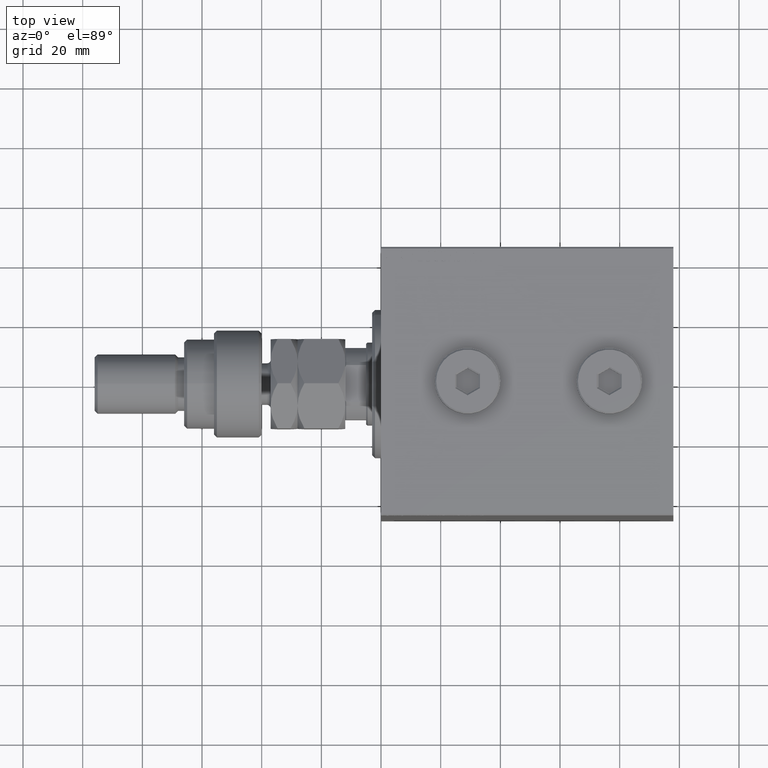
[diagram: clean part render]
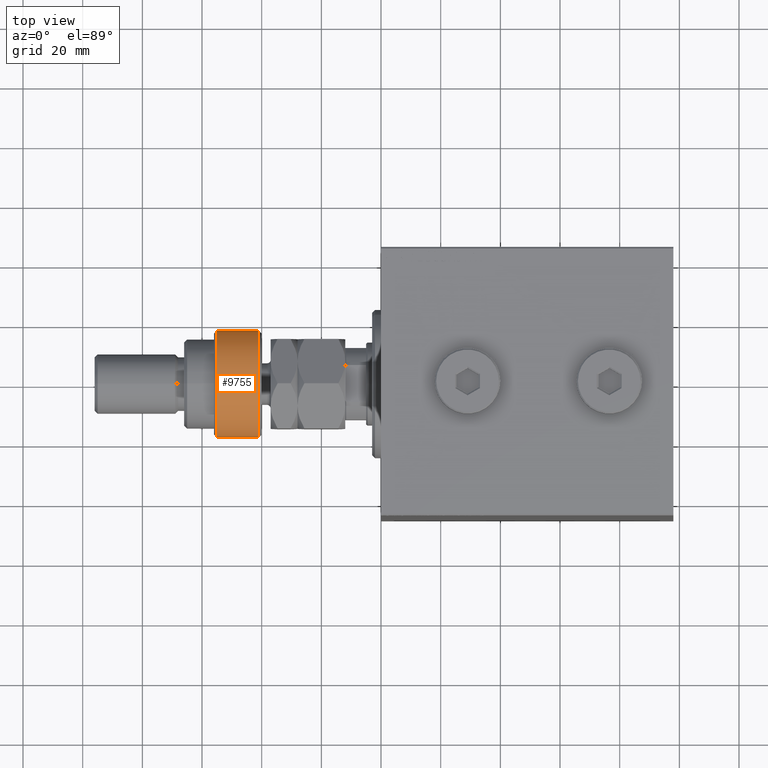
[diagram: same view with one face highlighted and labeled with its STEP entity id]
A machine part, top view. The second image highlights one B-rep face of the part: STEP entity #9755.
In plain terms, the highlighted cylindrical surface (partial cylindrical patch) has radius 18 mm, axis along (1, -0, -0).
Its self-contained STEP definition (entity closure, byte-faithful):
#1472 = CARTESIAN_POINT ( 'NONE',  ( -16.36306817195357155, -7.500000000000000000, 1.000000000000011324 ) ) ;
#2049 = ORIENTED_EDGE ( 'NONE', *, *, #41254, .T. ) ;
#6211 = VERTEX_POINT ( 'NONE', #1472 ) ;
#6508 = DIRECTION ( 'NONE',  ( 1.000000000000000000, 0.000000000000000000, 0.000000000000000000 ) ) ;
#6789 = CARTESIAN_POINT ( 'NONE',  ( -16.36306817195357155, -7.500000000000000000, 17.50000000000000000 ) ) ;
#7925 = FACE_OUTER_BOUND ( 'NONE', #9473, .T. ) ;
#8892 = AXIS2_PLACEMENT_3D ( 'NONE', #12552, #27346, #42143 ) ;
#9473 = EDGE_LOOP ( 'NONE', ( #24713, #45806, #2049, #31678, #44112 ) ) ;
#9755 = ADVANCED_FACE ( 'NONE', ( #7925 ), #29993, .T. ) ;
#9901 = CARTESIAN_POINT ( 'NONE',  ( -16.36306817195357155, -7.500000000000000000, 14.99999999999999645 ) ) ;
#11461 = DIRECTION ( 'NONE',  ( 0.000000000000000000, 0.000000000000000000, -1.000000000000000000 ) ) ;
#11845 = VERTEX_POINT ( 'NONE', #41099 ) ;
#11938 = DIRECTION ( 'NONE',  ( 1.000000000000000000, 0.000000000000000000, 0.000000000000000000 ) ) ;
#12552 = CARTESIAN_POINT ( 'NONE',  ( 0.000000000000000000, 0.000000000000000000, 1.000000000000011324 ) ) ;
#13587 = CARTESIAN_POINT ( 'NONE',  ( -16.36306817195357155, 7.500000000000000000, 14.99999999999999645 ) ) ;
#13646 = VERTEX_POINT ( 'NONE', #22724 ) ;
#15002 = VECTOR ( 'NONE', #36392, 1000.000000000000000 ) ;
#15392 = EDGE_CURVE ( 'NONE', #23272, #31896, #31659, .T. ) ;
#21267 = CIRCLE ( 'NONE', #8892, 18.00000000000000000 ) ;
#22222 = DIRECTION ( 'NONE',  ( -1.000000000000000000, 0.000000000000000000, 0.000000000000000000 ) ) ;
#22724 = CARTESIAN_POINT ( 'NONE',  ( -16.36306817195357155, 7.500000000000000000, 1.000000000000011324 ) ) ;
#23272 = VERTEX_POINT ( 'NONE', #13587 ) ;
#24713 = ORIENTED_EDGE ( 'NONE', *, *, #25633, .F. ) ;
#25625 = CARTESIAN_POINT ( 'NONE',  ( 0.000000000000000000, 0.000000000000000000, 16.00000000000000000 ) ) ;
#25633 = EDGE_CURVE ( 'NONE', #23272, #13646, #28228, .T. ) ;
#25771 = CARTESIAN_POINT ( 'NONE',  ( 0.000000000000000000, 0.000000000000000000, 14.99999999999999645 ) ) ;
#26211 = AXIS2_PLACEMENT_3D ( 'NONE', #25771, #11461, #11938 ) ;
#27346 = DIRECTION ( 'NONE',  ( -0.000000000000000000, -0.000000000000000000, 1.000000000000000000 ) ) ;
#28228 = LINE ( 'NONE', #46897, #46459 ) ;
#29993 = CYLINDRICAL_SURFACE ( 'NONE', #40905, 18.00000000000000000 ) ;
#31659 = CIRCLE ( 'NONE', #26211, 18.00000000000000000 ) ;
#31678 = ORIENTED_EDGE ( 'NONE', *, *, #42576, .T. ) ;
#31896 = VERTEX_POINT ( 'NONE', #9901 ) ;
#32181 = CIRCLE ( 'NONE', #39894, 18.00000000000000000 ) ;
#36392 = DIRECTION ( 'NONE',  ( -0.000000000000000000, -0.000000000000000000, -1.000000000000000000 ) ) ;
#36582 = CARTESIAN_POINT ( 'NONE',  ( 0.000000000000000000, 0.000000000000000000, 1.000000000000011324 ) ) ;
#37063 = DIRECTION ( 'NONE',  ( -0.000000000000000000, -0.000000000000000000, 1.000000000000000000 ) ) ;
#39894 = AXIS2_PLACEMENT_3D ( 'NONE', #36582, #37063, #6508 ) ;
#40026 = LINE ( 'NONE', #6789, #15002 ) ;
#40665 = DIRECTION ( 'NONE',  ( -0.000000000000000000, -0.000000000000000000, -1.000000000000000000 ) ) ;
#40905 = AXIS2_PLACEMENT_3D ( 'NONE', #25625, #40665, #22222 ) ;
#41099 = CARTESIAN_POINT ( 'NONE',  ( 18.00000000000000000, 0.000000000000000000, 1.000000000000011324 ) ) ;
#41254 = EDGE_CURVE ( 'NONE', #31896, #6211, #40026, .T. ) ;
#42143 = DIRECTION ( 'NONE',  ( 1.000000000000000000, 0.000000000000000000, 0.000000000000000000 ) ) ;
#42576 = EDGE_CURVE ( 'NONE', #6211, #11845, #21267, .T. ) ;
#43270 = DIRECTION ( 'NONE',  ( -0.000000000000000000, -0.000000000000000000, -1.000000000000000000 ) ) ;
#44112 = ORIENTED_EDGE ( 'NONE', *, *, #45133, .T. ) ;
#45133 = EDGE_CURVE ( 'NONE', #11845, #13646, #32181, .T. ) ;
#45806 = ORIENTED_EDGE ( 'NONE', *, *, #15392, .T. ) ;
#46459 = VECTOR ( 'NONE', #43270, 1000.000000000000000 ) ;
#46897 = CARTESIAN_POINT ( 'NONE',  ( -16.36306817195357155, 7.500000000000000000, 17.50000000000000000 ) ) ;